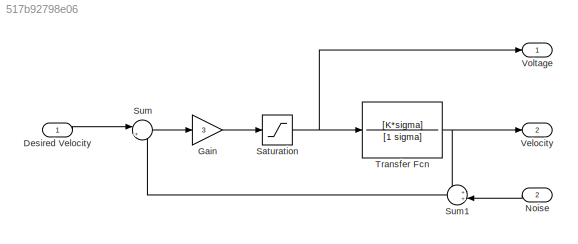
MODEL slx_517b92798e06
KIND model
CONFIG AbsTol = auto
CONFIG EnableMultiTasking = off
CONFIG FixedStep = auto
CONFIG MaxStep = auto
CONFIG MinStep = auto
CONFIG RelTol = 1e-3
CONFIG SampleTimeConstraint = Unconstrained
CONFIG SolverName = VariableStepAuto
CONFIG StartTime = 0.0
CONFIG StopTime = 3
WORKSPACE source: mxarray member
WORKSPACE K = 2.2
WORKSPACE Kp = 1
WORKSPACE Sig: Simulink.Signal (value not decoded)
WORKSPACE sigma = 14
BLOCK [Inport] Desired Velocity
BLOCK [Gain] Gain
  Gain = 3
BLOCK [Inport] Noise
  Port = 2
BLOCK [Saturate] Saturation
  LowerLimit = -7.5
  UpperLimit = 7.5
BLOCK [Sum] Sum
  Inputs = |+-
BLOCK [Sum] Sum1
  Inputs = ++|
BLOCK [TransferFcn] Transfer Fcn
  Denominator = [1 sigma]
  Numerator = [K*sigma]
BLOCK [Outport] Velocity
  Port = 2
BLOCK [Outport] Voltage
LINE Desired Velocity:1 -> Sum:1
LINE Gain:1 -> Saturation:1
LINE Noise:1 -> Sum1:2
NET Saturation:1 -> Transfer Fcn:1, Voltage:1
LINE Sum1:1 -> Sum:2
LINE Sum:1 -> Gain:1
NET Transfer Fcn:1 -> Sum1:1, Velocity:1
note: NET lines group one-source signal fan-out (src -> all destinations, sorted); 1:1 wires keep LINE
